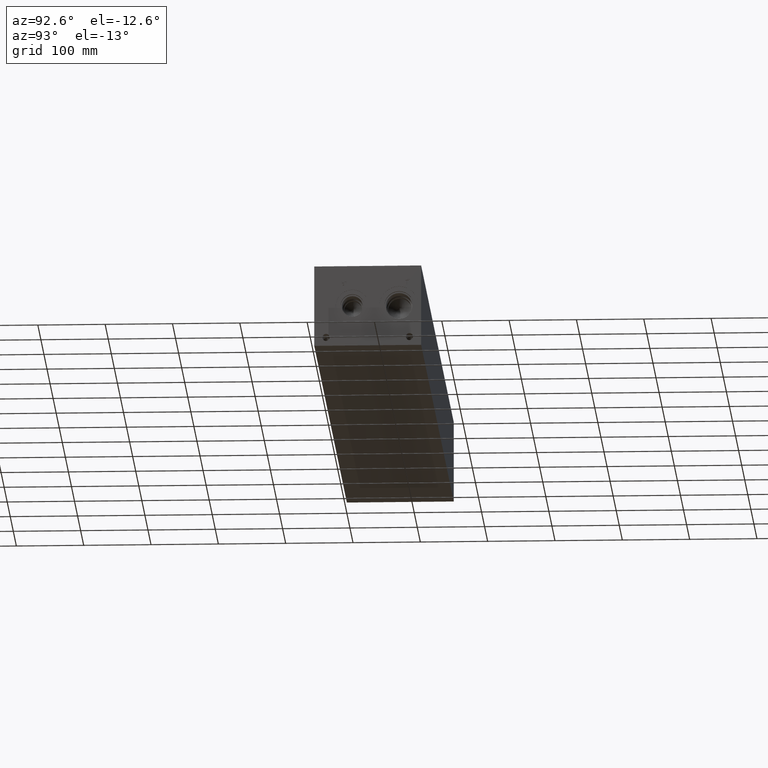
[diagram: clean part render]
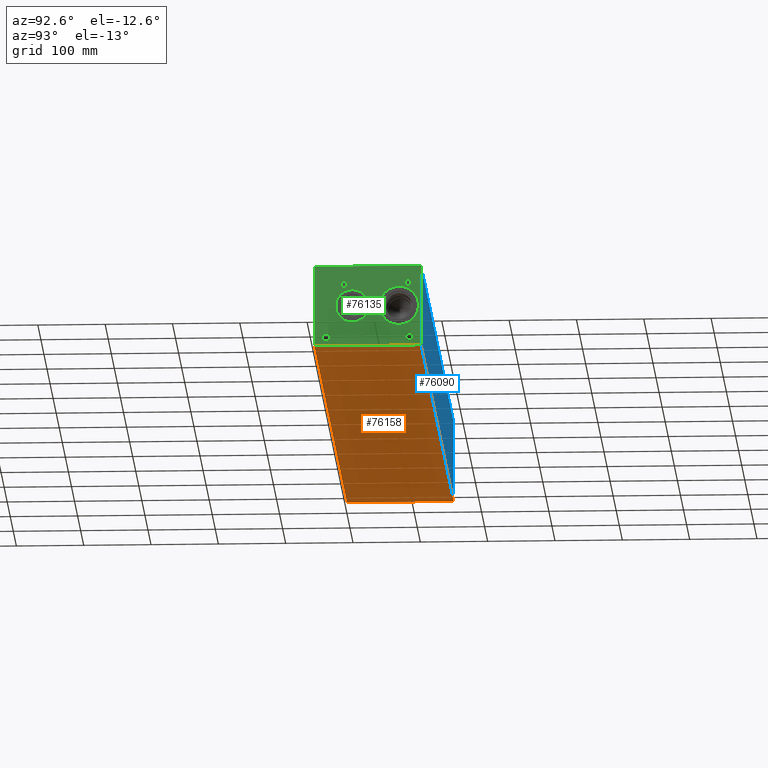
[diagram: same view with three faces highlighted in distinct colors, each labeled with its STEP entity id]
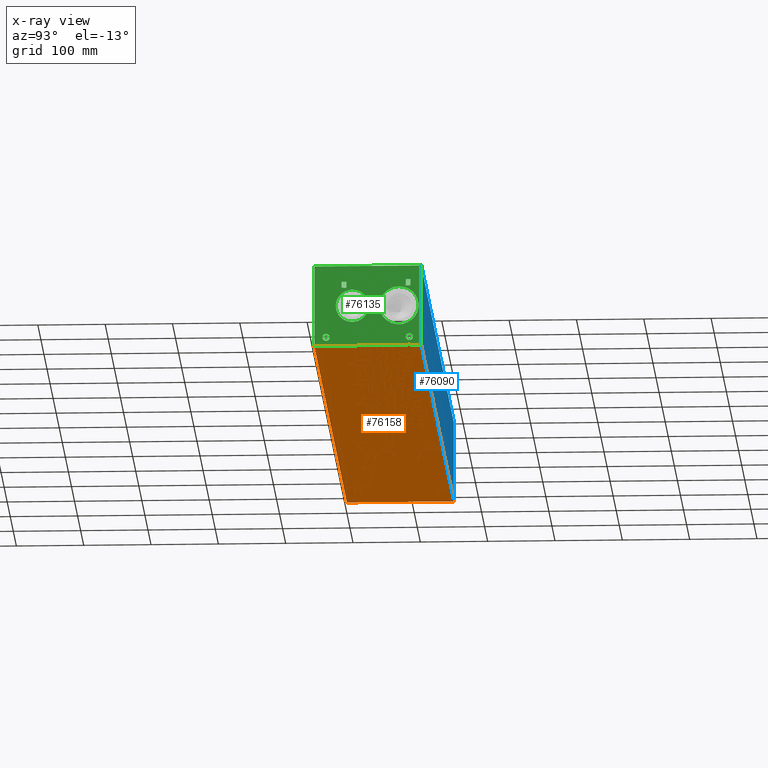
[diagram: x-ray of the same camera — body ghosted, the three highlighted faces saturated]
A machine part, auxiliary view with three faces highlighted in distinct colors.
The next image is the same camera in x-ray (body ghosted, the three faces saturated) — at least one of them is partly hidden behind the body in this view.
Their STEP definitions:

[orange] entity #76158 — the highlighted planar face has unit normal (0, 0, 1).
#2903=CARTESIAN_POINT('',(0.0,0.0,0.0));
#2904=VERTEX_POINT('',#2903);
#2905=CARTESIAN_POINT('',(1066.8000000000002,0.0,0.0));
#2906=VERTEX_POINT('',#2905);
#2907=CARTESIAN_POINT('',(0.0,0.0,0.0));
#2908=DIRECTION('',(1.0,0.0,0.0));
#2909=VECTOR('',#2908,1066.8000000000002);
#2910=LINE('',#2907,#2909);
#2911=EDGE_CURVE('',#2904,#2906,#2910,.T.);
#76020=CARTESIAN_POINT('',(0.0,158.75,0.0));
#76021=VERTEX_POINT('',#76020);
#76022=CARTESIAN_POINT('',(0.0,158.75,0.0));
#76023=DIRECTION('',(0.0,-1.0,0.0));
#76024=VECTOR('',#76023,158.75);
#76025=LINE('',#76022,#76024);
#76026=EDGE_CURVE('',#76021,#2904,#76025,.T.);
#76072=CARTESIAN_POINT('',(1066.8000000000002,158.75,0.0));
#76073=VERTEX_POINT('',#76072);
#76074=CARTESIAN_POINT('',(1066.8000000000002,158.75,0.0));
#76075=DIRECTION('',(-1.0,0.0,0.0));
#76076=VECTOR('',#76075,1066.8000000000002);
#76077=LINE('',#76074,#76076);
#76078=EDGE_CURVE('',#76073,#76021,#76077,.T.);
#76096=CARTESIAN_POINT('',(1066.8000000000002,0.0,0.0));
#76097=DIRECTION('',(0.0,1.0,0.0));
#76098=VECTOR('',#76097,158.75);
#76099=LINE('',#76096,#76098);
#76100=EDGE_CURVE('',#2906,#76073,#76099,.T.);
#76147=CARTESIAN_POINT('',(533.40000000000009,79.374999999999986,0.0));
#76148=DIRECTION('',(0.0,0.0,1.0));
#76149=DIRECTION('',(1.0,0.0,0.0));
#76150=AXIS2_PLACEMENT_3D('',#76147,#76148,#76149);
#76151=PLANE('',#76150);
#76152=ORIENTED_EDGE('',*,*,#2911,.F.);
#76153=ORIENTED_EDGE('',*,*,#76026,.F.);
#76154=ORIENTED_EDGE('',*,*,#76078,.F.);
#76155=ORIENTED_EDGE('',*,*,#76100,.F.);
#76156=EDGE_LOOP('',(#76152,#76153,#76154,#76155));
#76157=FACE_OUTER_BOUND('',#76156,.T.);
#76158=ADVANCED_FACE('',(#76157),#76151,.F.);

[blue] entity #76090 — the highlighted planar face has unit normal (0, 1, 0).
#24005=CARTESIAN_POINT('',(1066.8000000000002,158.75,120.65000000000001));
#24006=VERTEX_POINT('',#24005);
#24013=CARTESIAN_POINT('',(0.0,158.75,120.65000000000001));
#24014=VERTEX_POINT('',#24013);
#24015=CARTESIAN_POINT('',(1066.8000000000002,158.75,120.65000000000001));
#24016=DIRECTION('',(-1.0,0.0,0.0));
#24017=VECTOR('',#24016,1066.8000000000002);
#24018=LINE('',#24015,#24017);
#24019=EDGE_CURVE('',#24006,#24014,#24018,.T.);
#76020=CARTESIAN_POINT('',(0.0,158.75,0.0));
#76021=VERTEX_POINT('',#76020);
#76030=CARTESIAN_POINT('',(0.0,158.75,0.0));
#76031=DIRECTION('',(0.0,0.0,1.0));
#76032=VECTOR('',#76031,120.65000000000001);
#76033=LINE('',#76030,#76032);
#76034=EDGE_CURVE('',#76021,#24014,#76033,.T.);
#76067=CARTESIAN_POINT('',(1066.8000000000002,158.75,0.0));
#76068=DIRECTION('',(0.0,1.0,0.0));
#76069=DIRECTION('',(-1.0,0.0,0.0));
#76070=AXIS2_PLACEMENT_3D('',#76067,#76068,#76069);
#76071=PLANE('',#76070);
#76072=CARTESIAN_POINT('',(1066.8000000000002,158.75,0.0));
#76073=VERTEX_POINT('',#76072);
#76074=CARTESIAN_POINT('',(1066.8000000000002,158.75,0.0));
#76075=DIRECTION('',(-1.0,0.0,0.0));
#76076=VECTOR('',#76075,1066.8000000000002);
#76077=LINE('',#76074,#76076);
#76078=EDGE_CURVE('',#76073,#76021,#76077,.T.);
#76079=ORIENTED_EDGE('',*,*,#76078,.T.);
#76080=ORIENTED_EDGE('',*,*,#76034,.T.);
#76081=ORIENTED_EDGE('',*,*,#24019,.F.);
#76082=CARTESIAN_POINT('',(1066.8000000000002,158.75,0.0));
#76083=DIRECTION('',(0.0,0.0,1.0));
#76084=VECTOR('',#76083,120.65000000000001);
#76085=LINE('',#76082,#76084);
#76086=EDGE_CURVE('',#76073,#24006,#76085,.T.);
#76087=ORIENTED_EDGE('',*,*,#76086,.F.);
#76088=EDGE_LOOP('',(#76079,#76080,#76081,#76087));
#76089=FACE_OUTER_BOUND('',#76088,.T.);
#76090=ADVANCED_FACE('',(#76089),#76071,.T.);

[green] entity #76135 — the highlighted planar face has unit normal (1, 0, 0).
#223=CARTESIAN_POINT('',(1066.8000000000002,135.47845413297841,97.673703319481561));
#224=VERTEX_POINT('',#223);
#231=CARTESIAN_POINT('',(1066.8000000000002,135.4836,97.673703319481561));
#232=VERTEX_POINT('',#231);
#233=CARTESIAN_POINT('',(1066.8000000000002,135.48360000000002,97.673703319481561));
#234=DIRECTION('',(0.0,-1.0,0.0));
#235=VECTOR('',#234,0.005145867021611);
#236=LINE('',#233,#235);
#237=EDGE_CURVE('',#232,#224,#236,.T.);
#292=CARTESIAN_POINT('',(1066.8000000000002,135.4836,98.424999904632585));
#293=VERTEX_POINT('',#292);
#300=CARTESIAN_POINT('',(1066.8000000000002,135.47845413297841,98.424999904632585));
#301=VERTEX_POINT('',#300);
#302=CARTESIAN_POINT('',(1066.8000000000002,135.47845413297841,98.424999904632585));
#303=DIRECTION('',(0.0,1.0,0.0));
#304=VECTOR('',#303,0.005145867021582);
#305=LINE('',#302,#304);
#306=EDGE_CURVE('',#301,#293,#305,.T.);
#331=CARTESIAN_POINT('',(1066.8000000000002,135.47845413297841,97.673703319481561));
#332=DIRECTION('',(0.0,0.0,1.0));
#333=VECTOR('',#332,0.751296585151024);
#334=LINE('',#331,#333);
#335=EDGE_CURVE('',#224,#301,#334,.T.);
#423=CARTESIAN_POINT('',(1066.8000000000002,135.4836,90.646249999999995));
#424=VERTEX_POINT('',#423);
#425=CARTESIAN_POINT('',(1066.8000000000002,135.4836,90.646249999999995));
#426=DIRECTION('',(0.0,0.0,1.0));
#427=VECTOR('',#426,7.027453319481552);
#428=LINE('',#425,#427);
#429=EDGE_CURVE('',#424,#232,#428,.T.);
#446=CARTESIAN_POINT('',(1066.8000000000002,142.59559999999999,100.17125));
#447=VERTEX_POINT('',#446);
#448=CARTESIAN_POINT('',(1066.8000000000002,142.59559999999999,90.646249999999995));
#449=VERTEX_POINT('',#448);
#450=CARTESIAN_POINT('',(1066.8000000000002,142.59559999999999,100.17125));
#451=DIRECTION('',(0.0,0.0,-1.0));
#452=VECTOR('',#451,9.525000000000006);
#453=LINE('',#450,#452);
#454=EDGE_CURVE('',#447,#449,#453,.T.);
#477=CARTESIAN_POINT('',(1066.8000000000002,135.4836,100.17125));
#478=VERTEX_POINT('',#477);
#479=CARTESIAN_POINT('',(1066.8000000000002,135.4836,100.17125));
#480=DIRECTION('',(0.0,1.0,0.0));
#481=VECTOR('',#480,7.111999999999995);
#482=LINE('',#479,#481);
#483=EDGE_CURVE('',#478,#447,#482,.T.);
#504=CARTESIAN_POINT('',(1066.8000000000002,135.4836,98.424999904632585));
#505=DIRECTION('',(0.0,0.0,1.0));
#506=VECTOR('',#505,1.746250095367415);
#507=LINE('',#504,#506);
#508=EDGE_CURVE('',#293,#478,#507,.T.);
#518=CARTESIAN_POINT('',(1066.8000000000002,142.59559999999999,90.646249999999995));
#519=DIRECTION('',(0.0,-1.0,0.0));
#520=VECTOR('',#519,7.111999999999995);
#521=LINE('',#518,#520);
#522=EDGE_CURVE('',#449,#424,#521,.T.);
#1180=CARTESIAN_POINT('',(1066.8000000000002,47.599600000000002,97.123249999999999));
#1181=VERTEX_POINT('',#1180);
#1182=CARTESIAN_POINT('',(1066.8000000000002,47.599600000000002,87.598249999999993));
#1183=VERTEX_POINT('',#1182);
#1184=CARTESIAN_POINT('',(1066.8000000000002,47.599600000000002,97.123249999999999));
#1185=DIRECTION('',(0.0,0.0,-1.0));
#1186=VECTOR('',#1185,9.525000000000006);
#1187=LINE('',#1184,#1186);
#1188=EDGE_CURVE('',#1181,#1183,#1187,.T.);
#1211=CARTESIAN_POINT('',(1066.8000000000002,40.487600000000008,97.123249999999999));
#1212=VERTEX_POINT('',#1211);
#1213=CARTESIAN_POINT('',(1066.8000000000002,40.487600000000008,97.123249999999999));
#1214=DIRECTION('',(0.0,1.0,0.0));
#1215=VECTOR('',#1214,7.112000000000002);
#1216=LINE('',#1213,#1215);
#1217=EDGE_CURVE('',#1212,#1181,#1216,.T.);
#1235=CARTESIAN_POINT('',(1066.8000000000002,40.487600000000008,87.598249999999993));
#1236=VERTEX_POINT('',#1235);
#1237=CARTESIAN_POINT('',(1066.8000000000002,40.487600000000008,87.598249999999993));
#1238=DIRECTION('',(0.0,0.0,1.0));
#1239=VECTOR('',#1238,9.525000000000006);
#1240=LINE('',#1237,#1239);
#1241=EDGE_CURVE('',#1236,#1212,#1240,.T.);
#1259=CARTESIAN_POINT('',(1066.8000000000002,47.599600000000002,87.598249999999993));
#1260=DIRECTION('',(0.0,-1.0,0.0));
#1261=VECTOR('',#1260,7.112000000000002);
#1262=LINE('',#1259,#1261);
#1263=EDGE_CURVE('',#1183,#1236,#1262,.T.);
#2905=CARTESIAN_POINT('',(1066.8000000000002,0.0,0.0));
#2906=VERTEX_POINT('',#2905);
#2913=CARTESIAN_POINT('',(1066.8000000000002,0.0,120.65000000000001));
#2914=VERTEX_POINT('',#2913);
#2915=CARTESIAN_POINT('',(1066.8000000000002,0.0,0.0));
#2916=DIRECTION('',(0.0,0.0,1.0));
#2917=VECTOR('',#2916,120.65000000000001);
#2918=LINE('',#2915,#2917);
#2919=EDGE_CURVE('',#2906,#2914,#2918,.T.);
#24005=CARTESIAN_POINT('',(1066.8000000000002,158.75,120.65000000000001));
#24006=VERTEX_POINT('',#24005);
#24007=CARTESIAN_POINT('',(1066.8000000000002,0.0,120.65000000000001));
#24008=DIRECTION('',(0.0,1.0,0.0));
#24009=VECTOR('',#24008,158.75);
#24010=LINE('',#24007,#24009);
#24011=EDGE_CURVE('',#2914,#24006,#24010,.T.);
#69683=CARTESIAN_POINT('',(1066.8000000000002,125.83159999999999,31.343600000000006));
#69684=VERTEX_POINT('',#69683);
#69685=CARTESIAN_POINT('',(1066.8000000000002,125.83159999999999,60.325000000000003));
#69686=DIRECTION('',(-1.0,0.0,0.0));
#69687=DIRECTION('',(0.0,0.0,-1.0));
#69688=AXIS2_PLACEMENT_3D('',#69685,#69686,#69687);
#69689=CIRCLE('',#69688,28.981400000000001);
#69690=EDGE_CURVE('',#69684,#69684,#69689,.T.);
#69840=CARTESIAN_POINT('',(1066.8000000000002,56.48960000000001,35.839399999999998));
#69841=VERTEX_POINT('',#69840);
#69842=CARTESIAN_POINT('',(1066.8000000000002,56.48960000000001,60.325000000000003));
#69843=DIRECTION('',(-1.0,0.0,0.0));
#69844=DIRECTION('',(0.0,0.0,-1.0));
#69845=AXIS2_PLACEMENT_3D('',#69842,#69843,#69844);
#69846=CIRCLE('',#69845,24.485600000000005);
#69847=EDGE_CURVE('',#69841,#69841,#69846,.T.);
#69877=CARTESIAN_POINT('',(1066.8000000000002,141.28749999999999,7.3406));
#69878=VERTEX_POINT('',#69877);
#69879=CARTESIAN_POINT('',(1066.8000000000002,141.28749999999999,12.699999999999999));
#69880=DIRECTION('',(-1.0,0.0,0.0));
#69881=DIRECTION('',(0.0,0.0,-1.0));
#69882=AXIS2_PLACEMENT_3D('',#69879,#69880,#69881);
#69883=CIRCLE('',#69882,5.3594);
#69884=EDGE_CURVE('',#69878,#69878,#69883,.T.);
#69914=CARTESIAN_POINT('',(1066.8000000000002,17.462499999999999,7.3406));
#69915=VERTEX_POINT('',#69914);
#69916=CARTESIAN_POINT('',(1066.8000000000002,17.462499999999999,12.699999999999999));
#69917=DIRECTION('',(-1.0,0.0,0.0));
#69918=DIRECTION('',(0.0,0.0,-1.0));
#69919=AXIS2_PLACEMENT_3D('',#69916,#69917,#69918);
#69920=CIRCLE('',#69919,5.3594);
#69921=EDGE_CURVE('',#69915,#69915,#69920,.T.);
#76072=CARTESIAN_POINT('',(1066.8000000000002,158.75,0.0));
#76073=VERTEX_POINT('',#76072);
#76082=CARTESIAN_POINT('',(1066.8000000000002,158.75,0.0));
#76083=DIRECTION('',(0.0,0.0,1.0));
#76084=VECTOR('',#76083,120.65000000000001);
#76085=LINE('',#76082,#76084);
#76086=EDGE_CURVE('',#76073,#24006,#76085,.T.);
#76091=CARTESIAN_POINT('',(1066.8000000000002,0.0,0.0));
#76092=DIRECTION('',(1.0,0.0,0.0));
#76093=DIRECTION('',(0.0,1.0,0.0));
#76094=AXIS2_PLACEMENT_3D('',#76091,#76092,#76093);
#76095=PLANE('',#76094);
#76096=CARTESIAN_POINT('',(1066.8000000000002,0.0,0.0));
#76097=DIRECTION('',(0.0,1.0,0.0));
#76098=VECTOR('',#76097,158.75);
#76099=LINE('',#76096,#76098);
#76100=EDGE_CURVE('',#2906,#76073,#76099,.T.);
#76101=ORIENTED_EDGE('',*,*,#76100,.T.);
#76102=ORIENTED_EDGE('',*,*,#76086,.T.);
#76103=ORIENTED_EDGE('',*,*,#24011,.F.);
#76104=ORIENTED_EDGE('',*,*,#2919,.F.);
#76105=EDGE_LOOP('',(#76101,#76102,#76103,#76104));
#76106=FACE_OUTER_BOUND('',#76105,.T.);
#76107=ORIENTED_EDGE('',*,*,#306,.T.);
#76108=ORIENTED_EDGE('',*,*,#508,.T.);
#76109=ORIENTED_EDGE('',*,*,#483,.T.);
#76110=ORIENTED_EDGE('',*,*,#454,.T.);
#76111=ORIENTED_EDGE('',*,*,#522,.T.);
#76112=ORIENTED_EDGE('',*,*,#429,.T.);
#76113=ORIENTED_EDGE('',*,*,#237,.T.);
#76114=ORIENTED_EDGE('',*,*,#335,.T.);
#76115=EDGE_LOOP('',(#76107,#76108,#76109,#76110,#76111,#76112,#76113,#76114));
#76116=FACE_BOUND('',#76115,.T.);
#76117=ORIENTED_EDGE('',*,*,#1188,.T.);
#76118=ORIENTED_EDGE('',*,*,#1263,.T.);
#76119=ORIENTED_EDGE('',*,*,#1241,.T.);
#76120=ORIENTED_EDGE('',*,*,#1217,.T.);
#76121=EDGE_LOOP('',(#76117,#76118,#76119,#76120));
#76122=FACE_BOUND('',#76121,.T.);
#76123=ORIENTED_EDGE('',*,*,#69690,.T.);
#76124=EDGE_LOOP('',(#76123));
#76125=FACE_BOUND('',#76124,.T.);
#76126=ORIENTED_EDGE('',*,*,#69847,.T.);
#76127=EDGE_LOOP('',(#76126));
#76128=FACE_BOUND('',#76127,.T.);
#76129=ORIENTED_EDGE('',*,*,#69884,.T.);
#76130=EDGE_LOOP('',(#76129));
#76131=FACE_BOUND('',#76130,.T.);
#76132=ORIENTED_EDGE('',*,*,#69921,.T.);
#76133=EDGE_LOOP('',(#76132));
#76134=FACE_BOUND('',#76133,.T.);
#76135=ADVANCED_FACE('',(#76106,#76116,#76122,#76125,#76128,#76131,#76134),#76095,.T.);